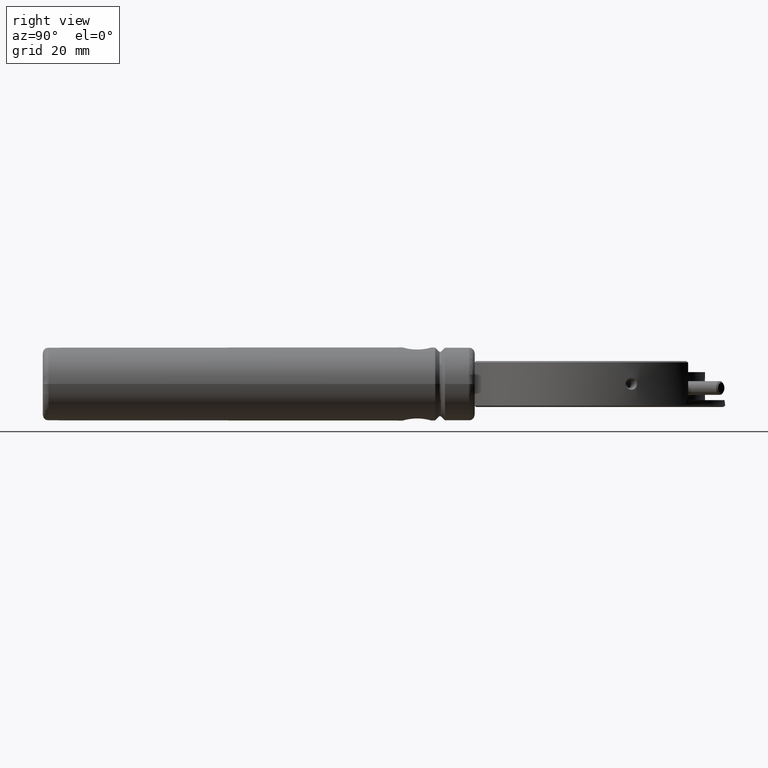
[diagram: clean part render]
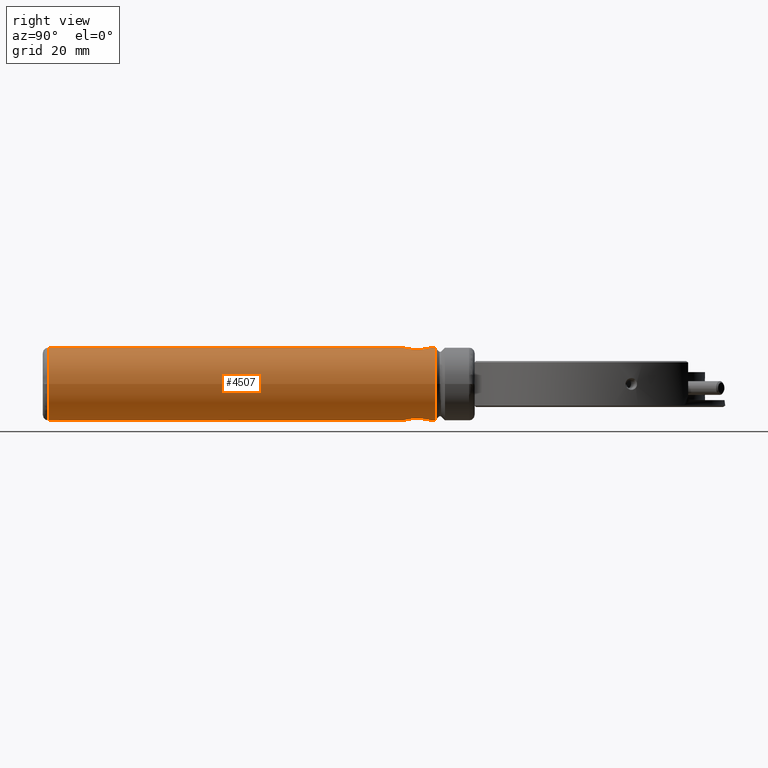
[diagram: same view with one face highlighted and labeled with its STEP entity id]
A machine part, right view. The second image highlights one B-rep face of the part: STEP entity #4507.
In plain terms, the highlighted cylindrical surface (bore or boss wall) has radius 6.35 mm, axis along (0, -1, -0).
Its self-contained STEP definition (entity closure, byte-faithful):
#3 = CARTESIAN_POINT ( 'NONE',  ( 2.084160332963430839, 28.10595911857980767, -5.999082876094799843 ) ) ;
#7 = CARTESIAN_POINT ( 'NONE',  ( -0.6090283064365047405, 25.09891733393197555, -6.322452250527000217 ) ) ;
#207 = FACE_BOUND ( 'NONE', #5433, .T. ) ;
#213 = CARTESIAN_POINT ( 'NONE',  ( -1.888293973408275317, 26.30637291407879630, 6.063588358973523107 ) ) ;
#245 = CARTESIAN_POINT ( 'NONE',  ( -0.6126292356222172719, 29.89981509643834912, 6.322105055832888176 ) ) ;
#275 = EDGE_LOOP ( 'NONE', ( #5732 ) ) ;
#282 = CARTESIAN_POINT ( 'NONE',  ( -1.157147839041243076, 29.62401236301567309, 6.249593576852184640 ) ) ;
#315 = CARTESIAN_POINT ( 'NONE',  ( -0.1636135580559794911, 29.99898542666771917, 6.349713400868362001 ) ) ;
#347 = CARTESIAN_POINT ( 'NONE',  ( -0.2943023335482569114, 25.01784456251400002, 6.344907949794232671 ) ) ;
#353 = EDGE_LOOP ( 'NONE', ( #5159 ) ) ;
#428 = CARTESIAN_POINT ( 'NONE',  ( -1.890597714039528476, 28.68870501357331904, -6.062861969224367265 ) ) ;
#462 = CARTESIAN_POINT ( 'NONE',  ( 1.753088339424478281, 28.95167052974097288, -6.106277660866429535 ) ) ;
#466 = CARTESIAN_POINT ( 'NONE',  ( -1.892141232722323707, 26.31391152038254688, -6.062385768258589103 ) ) ;
#577 = CARTESIAN_POINT ( 'NONE',  ( -1.130150698509895024, 29.62221336745961153, -6.249725721728527361 ) ) ;
#782 = CARTESIAN_POINT ( 'NONE',  ( 0.5910684234572377571, 29.90736403119804265, 6.324174368190937479 ) ) ;
#817 = CARTESIAN_POINT ( 'NONE',  ( -2.132251169223833287, 27.80084406193217461, 5.981304666390202307 ) ) ;
#885 = CARTESIAN_POINT ( 'NONE',  ( -0.3179448055471171264, 29.97807443504982672, 6.343755828998501656 ) ) ;
#914 = CARTESIAN_POINT ( 'NONE',  ( 1.379377507045106865, 25.57230524552165463, 6.201381036696287374 ) ) ;
#994 = CARTESIAN_POINT ( 'NONE',  ( -0.5936476498647029754, 29.90646536432476310, -6.323927822395509324 ) ) ;
#998 = CARTESIAN_POINT ( 'NONE',  ( -0.3143923176420998500, 25.02130105344581423, -6.343932172465472696 ) ) ;
#1029 = CARTESIAN_POINT ( 'NONE',  ( -0.1436987142175563947, 30.00067979121090289, -6.350192030174005353 ) ) ;
#1070 = AXIS2_PLACEMENT_3D ( 'NONE', #1652, #5421, #4391 ) ;
#1103 = CARTESIAN_POINT ( 'NONE',  ( -2.119361883649749423, 27.80643599525237164, -5.985939231651089543 ) ) ;
#1300 = CIRCLE ( 'NONE', #5269, 6.349999999999999645 ) ;
#1348 = CARTESIAN_POINT ( 'NONE',  ( 1.155297876922014577, 25.37469654351563264, 6.249918134813900572 ) ) ;
#1380 = CARTESIAN_POINT ( 'NONE',  ( 2.131553339967385607, 27.49999999999999645, 5.981553339967294214 ) ) ;
#1450 = CARTESIAN_POINT ( 'NONE',  ( 2.131553339967385607, 27.19299437697020494, 5.981553339967294214 ) ) ;
#1468 = VERTEX_POINT ( 'NONE', #3000 ) ;
#1493 = CARTESIAN_POINT ( 'NONE',  ( -1.005681199735846576, 29.70783788904525835, -6.271341328880407850 ) ) ;
#1570 = CARTESIAN_POINT ( 'NONE',  ( -2.084160332952309957, 26.89404088142972071, -5.999082876098675854 ) ) ;
#1607 = CARTESIAN_POINT ( 'NONE',  ( -2.131553339919276535, 27.49999999999999645, -5.981553339926610313 ) ) ;
#1638 = CARTESIAN_POINT ( 'NONE',  ( 1.892141232734887213, 28.68608847963573893, -6.062385768254655360 ) ) ;
#1652 = CARTESIAN_POINT ( 'NONE',  ( 0.000000000000000000, -36.50000000000000000, 0.000000000000000000 ) ) ;
#1760 = VERTEX_POINT ( 'NONE', #6709 ) ;
#1841 = CARTESIAN_POINT ( 'NONE',  ( -1.381427483770291120, 29.42574257907510216, 6.200924315676828336 ) ) ;
#1878 = CARTESIAN_POINT ( 'NONE',  ( 0.6115892007720451495, 25.09983852425881423, 6.322200090506996162 ) ) ;
#1912 = CARTESIAN_POINT ( 'NONE',  ( 1.753748202050299021, 26.04950103028440722, 6.106076998617328222 ) ) ;
#1919 = ORIENTED_EDGE ( 'NONE', *, *, #2986, .T. ) ;
#1942 = CARTESIAN_POINT ( 'NONE',  ( 1.746065921136113808, 28.96277413924016386, 6.108279990950433280 ) ) ;
#2050 = CARTESIAN_POINT ( 'NONE',  ( -0.7353713168966883318, 29.85111400438318796, -6.308751521902829396 ) ) ;
#2161 = CARTESIAN_POINT ( 'NONE',  ( 2.131553339924754376, 27.49999999999999645, -5.981553339924657209 ) ) ;
#2370 = CARTESIAN_POINT ( 'NONE',  ( -2.085421034907290139, 28.10010585455922438, 5.998635231281722824 ) ) ;
#2401 = CARTESIAN_POINT ( 'NONE',  ( 1.003730511928999425, 29.70908543551449199, 6.271658935889504072 ) ) ;
#2416 = EDGE_CURVE ( 'NONE', #5088, #6877, #4006, .T. ) ;
#2441 = CARTESIAN_POINT ( 'NONE',  ( 0.2948519129580463027, 29.98208660192770125, 6.344888152671915194 ) ) ;
#2471 = CARTESIAN_POINT ( 'NONE',  ( 1.128407217349874703, 29.62350991316175808, 6.250044243705925595 ) ) ;
#2503 = CARTESIAN_POINT ( 'NONE',  ( -2.080710592851842566, 26.87968667334650874, 6.000283438795481317 ) ) ;
#2583 = CARTESIAN_POINT ( 'NONE',  ( 1.378017623678969628, 29.42909590123545982, -6.201694367368697058 ) ) ;
#2617 = CARTESIAN_POINT ( 'NONE',  ( 1.153498074382718785, 29.62670661293407548, -6.250266442653455101 ) ) ;
#2621 = CARTESIAN_POINT ( 'NONE',  ( 0.5936476498580169903, 25.09353463572818299, -6.323927822396087528 ) ) ;
#2660 = CARTESIAN_POINT ( 'NONE',  ( -2.131553339967384719, 27.65391718428980994, -5.981553339967294214 ) ) ;
#2665 = CARTESIAN_POINT ( 'NONE',  ( 0.7353713168884020712, 25.14888599566756255, -6.308751521903770865 ) ) ;
#2945 = CARTESIAN_POINT ( 'NONE',  ( 0.1633345451368441170, 25.00101228138613152, 6.349714048299201608 ) ) ;
#2986 = EDGE_CURVE ( 'NONE', #1760, #1760, #4675, .T. ) ;
#3000 = CARTESIAN_POINT ( 'NONE',  ( 6.349999999999999645, 30.65000000000000213, -7.776507174585692163E-16 ) ) ;
#3050 = CARTESIAN_POINT ( 'NONE',  ( 0.1405547722999203886, 30.00094046867971898, 6.350265665744284860 ) ) ;
#3080 = CARTESIAN_POINT ( 'NONE',  ( -1.744032486598254605, 26.03401629926413108, 6.108859820746289415 ) ) ;
#3165 = CARTESIAN_POINT ( 'NONE',  ( 0.2978617743558181208, 25.01842925795239836, -6.344742626650420547 ) ) ;
#3200 = CARTESIAN_POINT ( 'NONE',  ( -1.153498074366908765, 25.37329338710598137, -6.250266442656233323 ) ) ;
#3208 = CARTESIAN_POINT ( 'NONE',  ( 2.131553339924754376, 27.49999999999999645, -5.981553339924657209 ) ) ;
#3276 = CARTESIAN_POINT ( 'NONE',  ( -0.7497349690396896138, 25.15521254864942691, -6.307049197456743528 ) ) ;
#3442 = DIRECTION ( 'NONE',  ( 1.000000000000000000, 0.000000000000000000, -1.224646799147353207E-16 ) ) ;
#3482 = CARTESIAN_POINT ( 'NONE',  ( -0.7533558872653658423, 29.84318592589020014, 6.306618163202056593 ) ) ;
#3517 = CARTESIAN_POINT ( 'NONE',  ( -1.126651866451578776, 25.37522242912401182, 6.250358727377190782 ) ) ;
#3581 = CARTESIAN_POINT ( 'NONE',  ( 0.000000000000000000, 37.50000000000000000, 0.000000000000000000 ) ) ;
#3586 = CARTESIAN_POINT ( 'NONE',  ( 0.7520972215454369003, 25.15627553176337372, 6.306764006875289930 ) ) ;
#3617 = CARTESIAN_POINT ( 'NONE',  ( 0.3173856566013902869, 25.02184763155575098, 6.343778186529801744 ) ) ;
#3738 = CARTESIAN_POINT ( 'NONE',  ( 2.034170047007727522, 26.74201581437933584, -6.015579021458054676 ) ) ;
#3769 = CARTESIAN_POINT ( 'NONE',  ( 0.1601966729877870588, 29.99928227453587226, -6.349797253969364341 ) ) ;
#3773 = CARTESIAN_POINT ( 'NONE',  ( 1.466290141057469798, 25.68423255757212686, -6.179141846348955802 ) ) ;
#3807 = CARTESIAN_POINT ( 'NONE',  ( -2.034170047018894589, 28.25798418563376302, -6.015579021454277253 ) ) ;
#3811 = CARTESIAN_POINT ( 'NONE',  ( 0.1436987142169038612, 24.99932020884573802, -6.350192030173966273 ) ) ;
#3847 = CARTESIAN_POINT ( 'NONE',  ( 1.360636376492158739, 25.57371532509586842, -6.203626427271690780 ) ) ;
#3970 = DIRECTION ( 'NONE',  ( 0.000000000000000000, -1.000000000000000000, -0.000000000000000000 ) ) ;
#4006 = B_SPLINE_CURVE_WITH_KNOTS ( 'NONE', 3,
 ( #2161, #6938, #3, #1638, #462, #2583, #2617, #5985, #5444, #6517, #3769, #1029, #4303, #994, #2050, #1493, #577, #4792, #4339, #6483, #428, #3807, #6974, #1103, #2660, #5299 ),
 .UNSPECIFIED., .F., .F.,
 ( 4, 2, 2, 2, 2, 2, 2, 2, 2, 2, 2, 2, 4 ),
 ( 4.448576678317802246E-15, 0.0009087577897704539505, 0.001817515579536459203, 0.002726273369302464888, 0.003180652264185467731, 0.003635031159068470141, 0.004089410053951472550, 0.004543788948834475393, 0.004998167843717478236, 0.005452546738600481079, 0.006361304528366486764, 0.006815683423249493944, 0.007270062318132501124 ),
 .UNSPECIFIED. ) ;
#4046 = CARTESIAN_POINT ( 'NONE',  ( -2.130840292637966371, 27.18588981052647924, 5.981807436561979330 ) ) ;
#4082 = CARTESIAN_POINT ( 'NONE',  ( 1.890170145152179071, 28.68970484258049680, 6.062998221549554145 ) ) ;
#4109 = EDGE_LOOP ( 'NONE', ( #5375, #4976 ) ) ;
#4114 = CARTESIAN_POINT ( 'NONE',  ( 2.081938236431862599, 28.11496047080009220, 5.999851980825914310 ) ) ;
#4150 = CARTESIAN_POINT ( 'NONE',  ( 2.131553339967385607, 27.49999999999999645, 5.981553339967294214 ) ) ;
#4167 = CARTESIAN_POINT ( 'NONE',  ( 6.349999999999999645, -36.50000000000000000, -7.776507174585692163E-16 ) ) ;
#4229 = CARTESIAN_POINT ( 'NONE',  ( -1.753088339411512431, 26.04832947028310031, -6.106277660870176760 ) ) ;
#4303 = CARTESIAN_POINT ( 'NONE',  ( -0.2978617743584972000, 29.98157074210353912, -6.344742626650343276 ) ) ;
#4335 = B_SPLINE_CURVE_WITH_KNOTS ( 'NONE', 3,
 ( #1607, #4879, #1570, #466, #4229, #6025, #3200, #3276, #7, #998, #6942, #3811, #3165, #2621, #2665, #4796, #5448, #3847, #3773, #6521, #6408, #3738, #5337, #4841, #6978, #4915 ),
 .UNSPECIFIED., .F., .F.,
 ( 4, 2, 2, 2, 2, 2, 2, 2, 2, 2, 2, 2, 4 ),
 ( 3.473642879182403309E-15, 0.0009087577897568752941, 0.001817515579510276804, 0.002726273369263678640, 0.003180652264140379666, 0.003635031159017080259, 0.004089410053893780851, 0.004543788948770481444, 0.004998167843647182036, 0.005452546738523883496, 0.006361304528277284681, 0.006815683423153985274, 0.007270062318030684999 ),
 .UNSPECIFIED. ) ;
#4339 = CARTESIAN_POINT ( 'NONE',  ( -1.466290141069791719, 29.31576744246202892, -6.179141846346031031 ) ) ;
#4391 = DIRECTION ( 'NONE',  ( 1.000000000000000000, 0.000000000000000000, -1.224646799147353207E-16 ) ) ;
#4507 = ADVANCED_FACE ( 'NONE', ( #4640, #4537, #207, #6793 ), #6825, .T. ) ;
#4537 = FACE_OUTER_BOUND ( 'NONE', #275, .T. ) ;
#4543 = CARTESIAN_POINT ( 'NONE',  ( 1.892576161684520031, 26.31493744849763416, 6.062246933637446489 ) ) ;
#4574 = CARTESIAN_POINT ( 'NONE',  ( 1.359268733706937571, 29.42763031444147970, 6.203929755083919417 ) ) ;
#4613 = CARTESIAN_POINT ( 'NONE',  ( 1.465116363322834570, 29.31708593681337405, 6.179422845551455268 ) ) ;
#4640 = FACE_OUTER_BOUND ( 'NONE', #353, .T. ) ;
#4645 = CARTESIAN_POINT ( 'NONE',  ( -0.1402875417107974643, 24.99906174755481558, 6.350265039700628833 ) ) ;
#4675 = B_SPLINE_CURVE_WITH_KNOTS ( 'NONE', 3,
 ( #4150, #1450, #6328, #4543, #1912, #914, #1348, #3586, #1878, #3617, #2945, #4645, #347, #5116, #5759, #5791, #3517, #5656, #5689, #3080, #213, #2503, #4046, #817, #2370, #5149, #6726, #1841, #282, #3482, #245, #885, #315, #3050, #2441, #782, #5722, #2401, #2471, #4574, #4613, #1942, #4082, #4114, #6261, #1380 ),
 .UNSPECIFIED., .T., .F.,
 ( 4, 2, 2, 2, 2, 2, 2, 2, 2, 2, 2, 2, 2, 2, 2, 2, 2, 2, 2, 2, 2, 2, 4 ),
 ( 0.000000000000000000, 0.0009079417880899772831, 0.001815883576179954566, 0.002723825364269931524, 0.003177796258314920762, 0.003631767152359910000, 0.004085738046404898370, 0.004539708940449887174, 0.004993679834494875978, 0.005447650728539863915, 0.006355592516629841524, 0.007263534304719819999, 0.008171476092809796740, 0.009079417880899774349, 0.009987359668989751957, 0.01044133056303474076, 0.01089530145707972783, 0.01134927235112471663, 0.01180324324516970544, 0.01225721413921469424, 0.01271118503325968305, 0.01361912682134966066, 0.01452706860943964000 ),
 .UNSPECIFIED. ) ;
#4792 = CARTESIAN_POINT ( 'NONE',  ( -1.360636376504439804, 29.42628467494113309, -6.203626427269005816 ) ) ;
#4796 = CARTESIAN_POINT ( 'NONE',  ( 1.005681199725306119, 25.29216211100043310, -6.271341328882074073 ) ) ;
#4813 = CARTESIAN_POINT ( 'NONE',  ( -2.131553339919276535, 27.49999999999999645, -5.981553339926610313 ) ) ;
#4841 = CARTESIAN_POINT ( 'NONE',  ( 2.119361883638895439, 27.19356400475388114, -5.985939231654931802 ) ) ;
#4879 = CARTESIAN_POINT ( 'NONE',  ( -2.131553339956425930, 27.19271845939227106, -5.981553339971199534 ) ) ;
#4915 = CARTESIAN_POINT ( 'NONE',  ( 2.131553339924754376, 27.49999999999999645, -5.981553339924657209 ) ) ;
#4976 = ORIENTED_EDGE ( 'NONE', *, *, #2416, .T. ) ;
#5045 = CIRCLE ( 'NONE', #1070, 6.349999999999999645 ) ;
#5088 = VERTEX_POINT ( 'NONE', #3208 ) ;
#5116 = CARTESIAN_POINT ( 'NONE',  ( -0.5900334606764899847, 25.09230546613410340, 6.324265275126917274 ) ) ;
#5149 = CARTESIAN_POINT ( 'NONE',  ( -1.894495905964941551, 28.68098071468608268, 6.061640932378804081 ) ) ;
#5159 = ORIENTED_EDGE ( 'NONE', *, *, #5249, .T. ) ;
#5249 = EDGE_CURVE ( 'NONE', #6315, #6315, #5045, .T. ) ;
#5269 = AXIS2_PLACEMENT_3D ( 'NONE', #6260, #5655, #3442 ) ;
#5299 = CARTESIAN_POINT ( 'NONE',  ( -2.131553339919276535, 27.49999999999999645, -5.981553339926610313 ) ) ;
#5337 = CARTESIAN_POINT ( 'NONE',  ( 2.070737657108943530, 26.89128907737366347, -6.002933352480104290 ) ) ;
#5375 = ORIENTED_EDGE ( 'NONE', *, *, #5997, .T. ) ;
#5421 = DIRECTION ( 'NONE',  ( -0.000000000000000000, 1.000000000000000000, 0.000000000000000000 ) ) ;
#5433 = EDGE_LOOP ( 'NONE', ( #1919 ) ) ;
#5444 = CARTESIAN_POINT ( 'NONE',  ( 0.6090283064460328966, 29.90108266611978038, -6.322452250526118256 ) ) ;
#5448 = CARTESIAN_POINT ( 'NONE',  ( 1.130150698498615158, 25.37778663258329459, -6.249725721730556849 ) ) ;
#5655 = DIRECTION ( 'NONE',  ( 0.000000000000000000, -1.000000000000000000, -0.000000000000000000 ) ) ;
#5656 = CARTESIAN_POINT ( 'NONE',  ( -1.357300043671717749, 25.57048115012445066, 6.204358568017146247 ) ) ;
#5689 = CARTESIAN_POINT ( 'NONE',  ( -1.463108663363457129, 25.68070992477522196, 6.179898255242589400 ) ) ;
#5722 = CARTESIAN_POINT ( 'NONE',  ( 0.7329432981643380085, 29.85218388185537464, 6.309039140025674897 ) ) ;
#5732 = ORIENTED_EDGE ( 'NONE', *, *, #6514, .T. ) ;
#5742 = AXIS2_PLACEMENT_3D ( 'NONE', #3581, #3970, #5753 ) ;
#5753 = DIRECTION ( 'NONE',  ( 1.000000000000000000, 0.000000000000000000, -1.224646799147353207E-16 ) ) ;
#5759 = CARTESIAN_POINT ( 'NONE',  ( -0.7316547389082089792, 25.14727860927092351, 6.309184991850125712 ) ) ;
#5791 = CARTESIAN_POINT ( 'NONE',  ( -1.002110947036905619, 25.28991679932866532, 6.271914186927506130 ) ) ;
#5985 = CARTESIAN_POINT ( 'NONE',  ( 0.7497349690508052777, 29.84478745139995581, -6.307049197455456557 ) ) ;
#5997 = EDGE_CURVE ( 'NONE', #6877, #5088, #4335, .T. ) ;
#6025 = CARTESIAN_POINT ( 'NONE',  ( -1.378017623664250513, 25.57090409879885584, -6.201694367371993977 ) ) ;
#6260 = CARTESIAN_POINT ( 'NONE',  ( 0.000000000000000000, 30.65000000000000213, 0.000000000000000000 ) ) ;
#6261 = CARTESIAN_POINT ( 'NONE',  ( 2.131553339967385607, 27.80700562302978440, 5.981553339967294214 ) ) ;
#6315 = VERTEX_POINT ( 'NONE', #4167 ) ;
#6328 = CARTESIAN_POINT ( 'NONE',  ( 2.084242420415708175, 26.89457774442688631, 5.999051253749445145 ) ) ;
#6408 = CARTESIAN_POINT ( 'NONE',  ( 1.890597714027836274, 26.31129498644712328, -6.062861969228019454 ) ) ;
#6483 = CARTESIAN_POINT ( 'NONE',  ( -1.746747069628821647, 28.96158892738647594, -6.108074787934053340 ) ) ;
#6514 = EDGE_CURVE ( 'NONE', #1468, #1468, #1300, .T. ) ;
#6517 = CARTESIAN_POINT ( 'NONE',  ( 0.3143923176484811899, 29.97869894660934520, -6.343932172465191144 ) ) ;
#6521 = CARTESIAN_POINT ( 'NONE',  ( 1.746747069616520376, 26.03841107263917110, -6.108074787937566086 ) ) ;
#6709 = CARTESIAN_POINT ( 'NONE',  ( 2.131553339967385607, 27.49999999999999645, 5.981553339967293326 ) ) ;
#6726 = CARTESIAN_POINT ( 'NONE',  ( -1.755742719225521276, 28.94728861197425118, 6.105503399847936663 ) ) ;
#6793 = FACE_BOUND ( 'NONE', #4109, .T. ) ;
#6825 = CYLINDRICAL_SURFACE ( 'NONE', #5742, 6.349999999999999645 ) ;
#6877 = VERTEX_POINT ( 'NONE', #4813 ) ;
#6938 = CARTESIAN_POINT ( 'NONE',  ( 2.131553339967382943, 27.80728154061197444, -5.981553339967291549 ) ) ;
#6942 = CARTESIAN_POINT ( 'NONE',  ( -0.1601966729839659487, 25.00071772552046667, -6.349797253969406974 ) ) ;
#6974 = CARTESIAN_POINT ( 'NONE',  ( -2.070737657119979591, 28.10871092263696980, -6.002933352476294893 ) ) ;
#6978 = CARTESIAN_POINT ( 'NONE',  ( 2.131553339956424153, 27.34608281571237853, -5.981553339971198646 ) ) ;